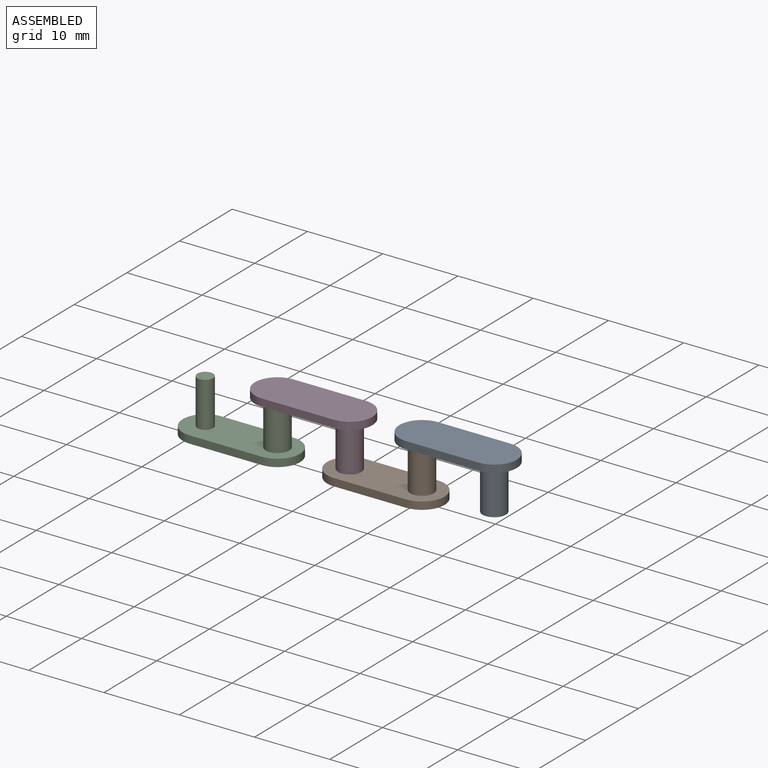
[diagram: assembled view]
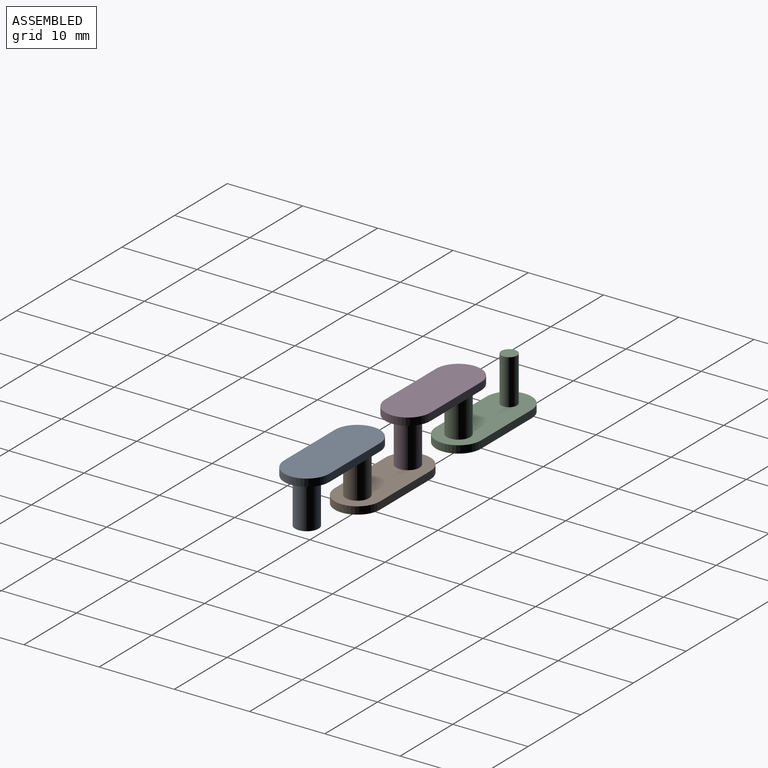
[diagram: assembled view, second angle]
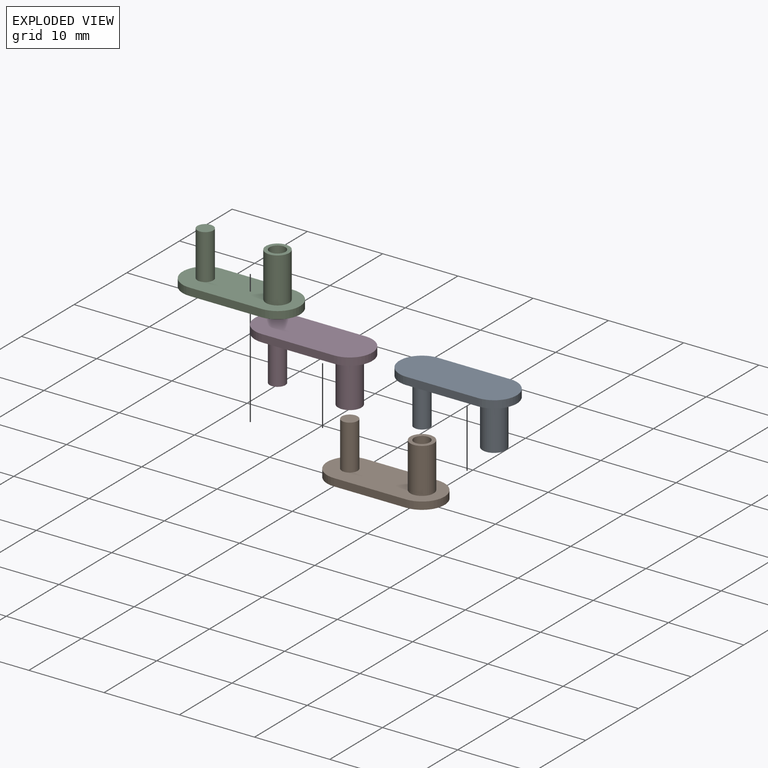
[diagram: exploded view]
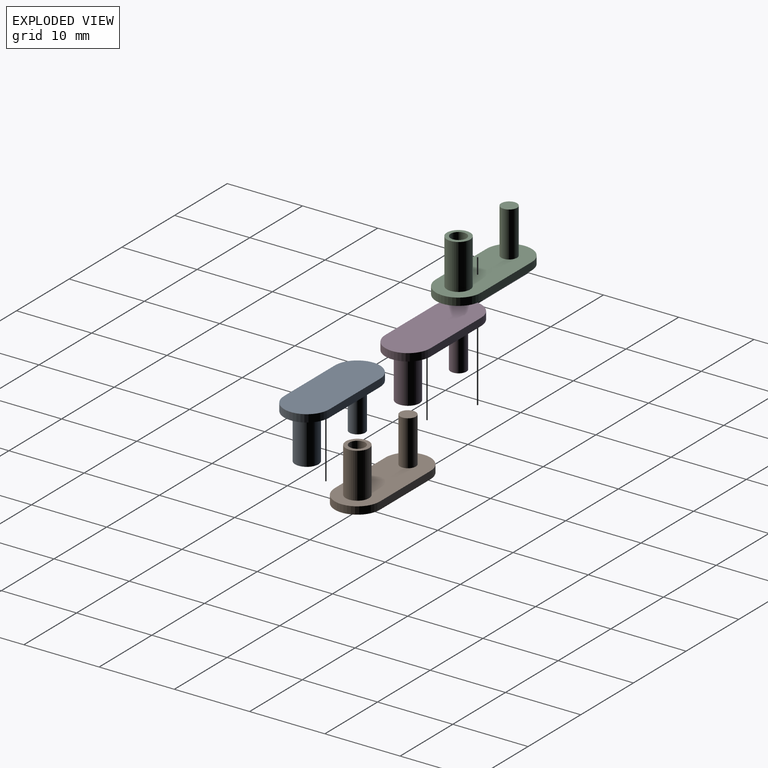
[diagram: exploded view, second angle]
ASSEMBLY  parts=4 mates=3
PART A: 12 faces, bbox 15.6x6x7 mm
  f0: plane 9.6x1mm, normal (0,1,0), area 9.6mm2, adj f1,f3,f4,f5
  f1: cylinder r=3mm len=6mm, axis (0,0,1), area 9.4mm2, adj f0,f2,f4,f5
  f2: plane 9.6x1mm, normal (0,-1,0), area 9.6mm2, adj f1,f3,f4,f5
  f3: cylinder r=3mm len=6mm, axis (0,0,1), area 9.4mm2, adj f0,f2,f4,f5
  f4: plane 15.6x6mm, normal (0,0,-1), area 85.9mm2, adj f0,f1,f2,f3
  f5: plane 15.6x6mm, normal (0,0,1), area 74.9mm2, adj f0,f1,f2,f3,f6,f9
  f6: cylinder r=1.05mm len=6mm, axis (0,0,-1), area 39.6mm2, adj f5,f7
  f7: plane 2.1x2.1mm, normal (0,0,1), area 3.5mm2, adj f6
  f8: cylinder r=1.05mm len=6mm, axis (0,0,-1), area 39.6mm2, adj f10,f11
  f9: cylinder r=1.55mm len=6mm, axis (0,0,-1), area 58.4mm2, adj f5,f10
  f10: plane 3.1x3.1mm, normal (0,0,1), area 4.1mm2, adj f8,f9
  f11: plane 2.1x2.1mm, normal (0,0,1), area 3.5mm2, adj f8
PART B: same geometry as A
PART C: same geometry as A
PART D: same geometry as A
PLACE A rot(axis=(1,0,0),180deg) t=(25.28,-0.34,6.03)mm
PLACE B rot(axis=(1,0,0),0deg) t=(15.68,-0.34,0.03)mm
PLACE C t=(-3.52,-0.34,0.03)mm
PLACE D rot(axis=(1,0,0),180deg) t=(6.08,-0.34,6.03)mm
MATE revolute B.f1 <-> D.f8  axis (0,0,1) through (10.88,-0.34,0.03)mm
MATE revolute A.f6 <-> B.f8  axis (0,0,1) through (20.48,-0.34,6.03)mm
MATE revolute D.f6 <-> C.f8  axis (0,0,1) through (1.28,-0.34,6.03)mm
